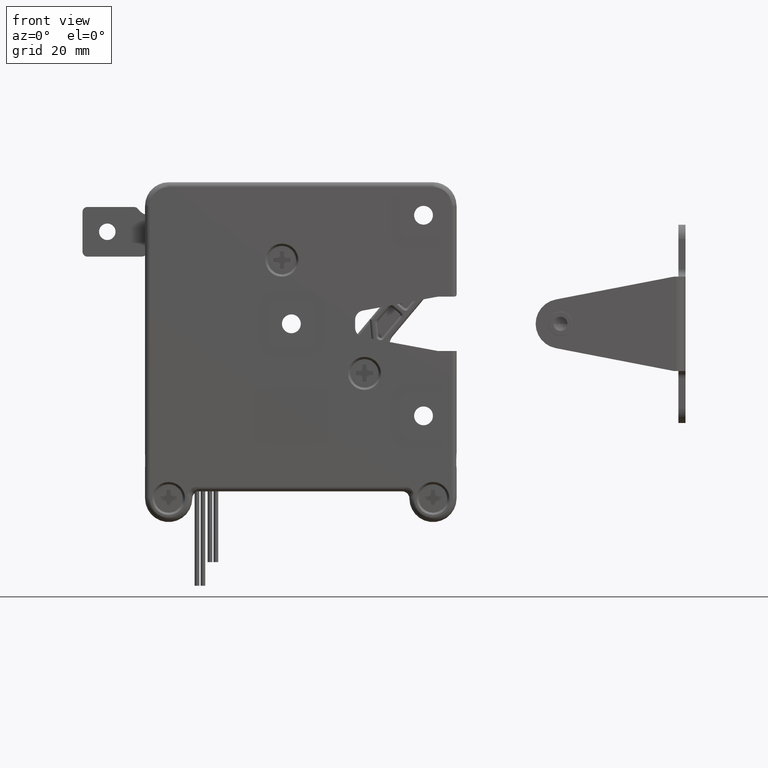
[diagram: clean part render]
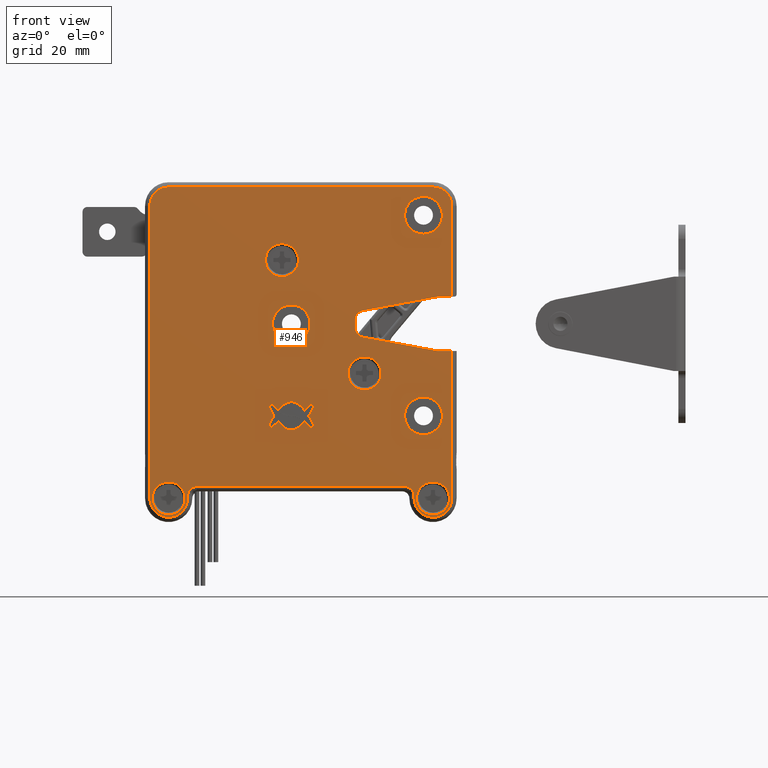
[diagram: same view with one face highlighted and labeled with its STEP entity id]
A machine part, front view. The second image highlights one B-rep face of the part: STEP entity #946.
In plain terms, the highlighted planar face has unit normal (0, -1, 0).
Its self-contained STEP definition (entity closure, byte-faithful):
#946=ADVANCED_FACE('',(#10690,#10691,#10692,#10693,#10694,#10695,#10696,#10697,#10698),#10689,.T.);
#10689=PLANE('',#32386);
#10690=FACE_OUTER_BOUND('',#32387,.T.);
#10691=FACE_BOUND('',#32388,.T.);
#10692=FACE_BOUND('',#32389,.T.);
#10693=FACE_BOUND('',#32390,.T.);
#10694=FACE_BOUND('',#32391,.T.);
#10695=FACE_BOUND('',#32392,.T.);
#10696=FACE_BOUND('',#32393,.T.);
#10697=FACE_BOUND('',#32394,.T.);
#10698=FACE_BOUND('',#32395,.T.);
#32383=CARTESIAN_POINT('',(6.90000000000E+00,-1.25000000000E+01,-4.80000007493E+01));
#32384=DIRECTION('',(0.00000000000E+00,-1.00000000000E+00,0.00000000000E+00));
#32385=DIRECTION('',(0.00000000000E+00,0.00000000000E+00,1.00000000000E+00));
#32386=AXIS2_PLACEMENT_3D('',#32383,#32384,#32385);
#32387=EDGE_LOOP('',(#47318,#47319,#47320,#47321,#47322,#47323,#47324,#47325,#47326,#47327,#47328,#47329,#47330,#47331,#47332,#47333,#47334,#47335,#47336,#47337));
#32388=EDGE_LOOP('',(#47338,#47339));
#32389=EDGE_LOOP('',(#47340,#47341));
#32390=EDGE_LOOP('',(#47342,#47343,#47344,#47345,#47346,#47347,#47348,#47349,#47350));
#32391=EDGE_LOOP('',(#47351,#47352));
#32392=EDGE_LOOP('',(#47353,#47354));
#32393=EDGE_LOOP('',(#47355,#47356));
#32394=EDGE_LOOP('',(#47357,#47358));
#32395=EDGE_LOOP('',(#47359,#47360));
#47318=ORIENTED_EDGE('',*,*,#57233,.T.);
#47319=ORIENTED_EDGE('',*,*,#57234,.T.);
#47320=ORIENTED_EDGE('',*,*,#57235,.F.);
#47321=ORIENTED_EDGE('',*,*,#57236,.F.);
#47322=ORIENTED_EDGE('',*,*,#57237,.T.);
#47323=ORIENTED_EDGE('',*,*,#57238,.F.);
#47324=ORIENTED_EDGE('',*,*,#57239,.T.);
#47325=ORIENTED_EDGE('',*,*,#57240,.F.);
#47326=ORIENTED_EDGE('',*,*,#57241,.F.);
#47327=ORIENTED_EDGE('',*,*,#57242,.T.);
#47328=ORIENTED_EDGE('',*,*,#54513,.T.);
#47329=ORIENTED_EDGE('',*,*,#54510,.T.);
#47330=ORIENTED_EDGE('',*,*,#54507,.T.);
#47331=ORIENTED_EDGE('',*,*,#54503,.T.);
#47332=ORIENTED_EDGE('',*,*,#57243,.T.);
#47333=ORIENTED_EDGE('',*,*,#57244,.T.);
#47334=ORIENTED_EDGE('',*,*,#57245,.T.);
#47335=ORIENTED_EDGE('',*,*,#57246,.T.);
#47336=ORIENTED_EDGE('',*,*,#57247,.T.);
#47337=ORIENTED_EDGE('',*,*,#57248,.T.);
#47338=ORIENTED_EDGE('',*,*,#57249,.F.);
#47339=ORIENTED_EDGE('',*,*,#57250,.F.);
#47340=ORIENTED_EDGE('',*,*,#57251,.F.);
#47341=ORIENTED_EDGE('',*,*,#57252,.F.);
#47342=ORIENTED_EDGE('',*,*,#53861,.T.);
#47343=ORIENTED_EDGE('',*,*,#57253,.T.);
#47344=ORIENTED_EDGE('',*,*,#53842,.T.);
#47345=ORIENTED_EDGE('',*,*,#53845,.T.);
#47346=ORIENTED_EDGE('',*,*,#53847,.T.);
#47347=ORIENTED_EDGE('',*,*,#57254,.T.);
#47348=ORIENTED_EDGE('',*,*,#53849,.T.);
#47349=ORIENTED_EDGE('',*,*,#53852,.T.);
#47350=ORIENTED_EDGE('',*,*,#53854,.T.);
#47351=ORIENTED_EDGE('',*,*,#57255,.F.);
#47352=ORIENTED_EDGE('',*,*,#57256,.F.);
#47353=ORIENTED_EDGE('',*,*,#57257,.T.);
#47354=ORIENTED_EDGE('',*,*,#57258,.T.);
#47355=ORIENTED_EDGE('',*,*,#57259,.T.);
#47356=ORIENTED_EDGE('',*,*,#57260,.T.);
#47357=ORIENTED_EDGE('',*,*,#57261,.T.);
#47358=ORIENTED_EDGE('',*,*,#57262,.T.);
#47359=ORIENTED_EDGE('',*,*,#57263,.T.);
#47360=ORIENTED_EDGE('',*,*,#57264,.T.);
#53842=EDGE_CURVE('',#59784,#59785,#59786,.T.);
#53845=EDGE_CURVE('',#59785,#59804,#59805,.T.);
#53847=EDGE_CURVE('',#59804,#59817,#59818,.T.);
#53849=EDGE_CURVE('',#59830,#59831,#59832,.T.);
#53852=EDGE_CURVE('',#59831,#59850,#59851,.T.);
#53854=EDGE_CURVE('',#59850,#59863,#59864,.T.);
#53861=EDGE_CURVE('',#59863,#59909,#59910,.T.);
#54503=EDGE_CURVE('',#64265,#64258,#64266,.T.);
#54507=EDGE_CURVE('',#64278,#64265,#64292,.T.);
#54510=EDGE_CURVE('',#64298,#64278,#64312,.T.);
#54513=EDGE_CURVE('',#64318,#64298,#64332,.T.);
#57233=EDGE_CURVE('',#82644,#82645,#82646,.T.);
#57234=EDGE_CURVE('',#82645,#82652,#82653,.T.);
#57235=EDGE_CURVE('',#82659,#82652,#82660,.T.);
#57236=EDGE_CURVE('',#82666,#82659,#82667,.T.);
#57237=EDGE_CURVE('',#82666,#82673,#82674,.T.);
#57238=EDGE_CURVE('',#82680,#82673,#82681,.T.);
#57239=EDGE_CURVE('',#82680,#82687,#82688,.T.);
#57240=EDGE_CURVE('',#82694,#82687,#82695,.T.);
#57241=EDGE_CURVE('',#82701,#82694,#82702,.T.);
#57242=EDGE_CURVE('',#82701,#64318,#82708,.T.);
#57243=EDGE_CURVE('',#64258,#82714,#82715,.T.);
#57244=EDGE_CURVE('',#82714,#82721,#82722,.T.);
#57245=EDGE_CURVE('',#82721,#82728,#82729,.T.);
#57246=EDGE_CURVE('',#82728,#82735,#82736,.T.);
#57247=EDGE_CURVE('',#82735,#82742,#82743,.T.);
#57248=EDGE_CURVE('',#82742,#82644,#82749,.T.);
#57249=EDGE_CURVE('',#82755,#82756,#82757,.T.);
#57250=EDGE_CURVE('',#82756,#82755,#82763,.T.);
#57251=EDGE_CURVE('',#82769,#82770,#82771,.T.);
#57252=EDGE_CURVE('',#82770,#82769,#82777,.T.);
#57253=EDGE_CURVE('',#59909,#59784,#82783,.T.);
#57254=EDGE_CURVE('',#59817,#59830,#82789,.T.);
#57255=EDGE_CURVE('',#82795,#82796,#82797,.T.);
#57256=EDGE_CURVE('',#82796,#82795,#82803,.T.);
#57257=EDGE_CURVE('',#82809,#82810,#82811,.T.);
#57258=EDGE_CURVE('',#82810,#82809,#82817,.T.);
#57259=EDGE_CURVE('',#82823,#82824,#82825,.T.);
#57260=EDGE_CURVE('',#82824,#82823,#82831,.T.);
#57261=EDGE_CURVE('',#82837,#82838,#82839,.T.);
#57262=EDGE_CURVE('',#82838,#82837,#82845,.T.);
#57263=EDGE_CURVE('',#82851,#82852,#82853,.T.);
#57264=EDGE_CURVE('',#82852,#82851,#82859,.T.);
#59784=VERTEX_POINT('',#98678);
#59785=VERTEX_POINT('',#98679);
#59786=(BOUNDED_CURVE() B_SPLINE_CURVE(3,(#98680,#98681,#98682,#98683,#98684,#98685,#98686,#98687,#98688),.UNSPECIFIED.,.F.,.F.) B_SPLINE_CURVE_WITH_KNOTS((4,1,1,1,1,1,4),(0.00000000000E+00,8.39288835995E-04,1.39880397786E-03,1.67856191924E-03,2.04764154787E-03,2.23088923862E-03,2.50928476180E-03),.UNSPECIFIED.) CURVE() GEOMETRIC_REPRESENTATION_ITEM() RATIONAL_B_SPLINE_CURVE((1.00000000000E+00,1.00000000000E+00,1.00000000000E+00,1.00000000000E+00,1.00000000000E+00,1.00000000000E+00,1.00000000000E+00,1.00000000000E+00,1.00000000000E+00)) REPRESENTATION_ITEM('') );
#59804=VERTEX_POINT('',#98695);
#59805=(BOUNDED_CURVE() B_SPLINE_CURVE(3,(#98696,#98697,#98698,#98699,#98700,#98701,#98702,#98703,#98704,#98705,#98706,#98707,#98708,#98709,#98710,#98711,#98712,#98713,#98714,#98715,#98716,#98717,#98718,#98719,#98720,#98721,#98722,#98723,#98724,#98725,#98726,#98727,#98728,#98729,#98730,#98731,#98732,#98733,#98734,#98735,#98736,#98737,#98738,#98739,#98740,#98741,#98742,#98743,#98744,#98745,#98746,#98747,#98748,#98749,#98750,#98751,#98752,#98753,#98754,#98755,#98756),.UNSPECIFIED.,.F.,.F.) B_SPLINE_CURVE_WITH_KNOTS((4,1,1,1,1,1,1,1,1,1,1,1,1,1,1,1,1,1,1,1,1,1,1,1,1,1,1,1,1,1,1,1,1,1,1,1,1,1,1,1,1,1,1,1,1,1,1,1,1,1,1,1,1,1,1,1,1,1,4),(0.00000000000E+00,4.58069698383E-05,9.16431224876E-05,1.37523301518E-04,1.83463018447E-04,2.29453337392E-04,2.75407286771E-04,3.21274355074E-04,3.67080560354E-04,4.12887807087E-04,4.58681416539E-04,5.04466375188E-04,5.50244279369E-04,5.96017044535E-04,6.41790498710E-04,6.87564022794E-04,7.33337395224E-04,7.79110581318E-04,8.24883897840E-04,8.70657510927E-04,9.16431429005E-04,9.62205547103E-04,1.00797966622E-03,1.05375367803E-03,1.09952759609E-03,1.14530143704E-03,1.19107521665E-03,1.23684894973E-03,1.28262265021E-03,1.32839634143E-03,1.37417007116E-03,1.41994388717E-03,1.46571783264E-03,1.51149194619E-03,1.55726626197E-03,1.60304080961E-03,1.64881561427E-03,1.69459068797E-03,1.74036602307E-03,1.78614161364E-03,1.83191745850E-03,1.87769356123E-03,1.92346993022E-03,1.96924657868E-03,2.01502352469E-03,2.06080079124E-03,2.10657840623E-03,2.15235640254E-03,2.19813481802E-03,2.24391369555E-03,2.28969308308E-03,2.33547303364E-03,2.38125360537E-03,2.42703486156E-03,2.47281687070E-03,2.51859970648E-03,2.56438342302E-03,2.61016789639E-03,2.65595293138E-03),.UNSPECIFIED.) CURVE() GEOMETRIC_REPRESENTATION_ITEM() RATIONAL_B_SPLINE_CURVE((1.00000000000E+00,1.00000000000E+00,1.00000000000E+00,1.00000000000E+00,1.00000000000E+00,1.00000000000E+00,1.00000000000E+00,1.00000000000E+00,1.00000000000E+00,1.00000000000E+00,1.00000000000E+00,1.00000000000E+00,1.00000000000E+00,1.00000000000E+00,1.00000000000E+00,1.00000000000E+00,1.00000000000E+00,1.00000000000E+00,1.00000000000E+00,1.00000000000E+00,1.00000000000E+00,1.00000000000E+00,1.00000000000E+00,1.00000000000E+00,1.00000000000E+00,1.00000000000E+00,1.00000000000E+00,1.00000000000E+00,1.00000000000E+00,1.00000000000E+00,1.00000000000E+00,1.00000000000E+00,1.00000000000E+00,1.00000000000E+00,1.00000000000E+00,1.00000000000E+00,1.00000000000E+00,1.00000000000E+00,1.00000000000E+00,1.00000000000E+00,1.00000000000E+00,1.00000000000E+00,1.00000000000E+00,1.00000000000E+00,1.00000000000E+00,1.00000000000E+00,1.00000000000E+00,1.00000000000E+00,1.00000000000E+00,1.00000000000E+00,1.00000000000E+00,1.00000000000E+00,1.00000000000E+00,1.00000000000E+00,1.00000000000E+00,1.00000000000E+00,1.00000000000E+00,1.00000000000E+00,1.00000000000E+00,1.00000000000E+00,1.00000000000E+00)) REPRESENTATION_ITEM('') );
#59817=VERTEX_POINT('',#98760);
#59818=(BOUNDED_CURVE() B_SPLINE_CURVE(3,(#98761,#98762,#98763,#98764,#98765,#98766,#98767,#98768,#98769,#98770,#98771,#98772,#98773,#98774,#98775),.UNSPECIFIED.,.F.,.F.) B_SPLINE_CURVE_WITH_KNOTS((4,1,1,1,1,1,1,1,1,1,1,1,4),(0.00000000000E+00,5.75868028548E-04,1.34364812604E-03,1.72755868051E-03,1.98358597058E-03,2.11159407115E-03,2.36556053443E-03,2.86032497175E-03,3.04853792767E-03,3.42514091372E-03,3.61709699042E-03,4.00098587943E-03,5.15267525246E-03),.UNSPECIFIED.) CURVE() GEOMETRIC_REPRESENTATION_ITEM() RATIONAL_B_SPLINE_CURVE((1.00000000000E+00,1.00000000000E+00,1.00000000000E+00,1.00000000000E+00,1.00000000000E+00,1.00000000000E+00,1.00000000000E+00,1.00000000000E+00,1.00000000000E+00,1.00000000000E+00,1.00000000000E+00,1.00000000000E+00,1.00000000000E+00,1.00000000000E+00,1.00000000000E+00)) REPRESENTATION_ITEM('') );
#59830=VERTEX_POINT('',#98779);
#59831=VERTEX_POINT('',#98780);
#59832=(BOUNDED_CURVE() B_SPLINE_CURVE(3,(#98781,#98782,#98783,#98784,#98785,#98786,#98787,#98788,#98789,#98790,#98791,#98792,#98793,#98794,#98795,#98796,#98797,#98798,#98799,#98800,#98801,#98802,#98803,#98804,#98805,#98806,#98807,#98808,#98809,#98810,#98811,#98812,#98813,#98814,#98815,#98816,#98817,#98818,#98819,#98820,#98821,#98822,#98823,#98824,#98825,#98826,#98827,#98828),.UNSPECIFIED.,.F.,.F.) B_SPLINE_CURVE_WITH_KNOTS((4,1,1,1,1,1,1,1,1,1,1,1,1,1,1,1,1,1,1,1,1,1,1,1,1,1,1,1,1,1,1,1,1,1,1,1,1,1,1,1,1,1,1,1,1,4),(0.00000000000E+00,2.87046849842E-04,5.82901126510E-04,8.72573682812E-04,1.16267494032E-03,1.45370776246E-03,1.74429304979E-03,2.03320976174E-03,2.28175314155E-03,2.42246140955E-03,2.47872602125E-03,2.51714205339E-03,2.55487302761E-03,2.59193134131E-03,2.62831361461E-03,2.66401645609E-03,2.69903646293E-03,2.73337022100E-03,2.76701430493E-03,2.79996527827E-03,2.83221969357E-03,2.86377409247E-03,2.89462500583E-03,2.92476895379E-03,2.95420244594E-03,2.98292198136E-03,3.01092404875E-03,3.03820512651E-03,3.06476168288E-03,3.09059017602E-03,3.11568705409E-03,3.14004875540E-03,3.16367170849E-03,3.18655233222E-03,3.20868703591E-03,3.23007221943E-03,3.25070427333E-03,3.27057957895E-03,3.28969450854E-03,3.30804542541E-03,3.32562868407E-03,3.34244063037E-03,3.35847760171E-03,3.37373592720E-03,3.38821192793E-03,3.40190191723E-03),.UNSPECIFIED.) CURVE() GEOMETRIC_REPRESENTATION_ITEM() RATIONAL_B_SPLINE_CURVE((1.00000000000E+00,1.00000000000E+00,1.00000000000E+00,1.00000000000E+00,1.00000000000E+00,1.00000000000E+00,1.00000000000E+00,1.00000000000E+00,1.00000000000E+00,1.00000000000E+00,1.00000000000E+00,1.00000000000E+00,1.00000000000E+00,1.00000000000E+00,1.00000000000E+00,1.00000000000E+00,1.00000000000E+00,1.00000000000E+00,1.00000000000E+00,1.00000000000E+00,1.00000000000E+00,1.00000000000E+00,1.00000000000E+00,1.00000000000E+00,1.00000000000E+00,1.00000000000E+00,1.00000000000E+00,1.00000000000E+00,1.00000000000E+00,1.00000000000E+00,1.00000000000E+00,1.00000000000E+00,1.00000000000E+00,1.00000000000E+00,1.00000000000E+00,1.00000000000E+00,1.00000000000E+00,1.00000000000E+00,1.00000000000E+00,1.00000000000E+00,1.00000000000E+00,1.00000000000E+00,1.00000000000E+00,1.00000000000E+00,1.00000000000E+00,1.00000000000E+00,1.00000000000E+00,1.00000000000E+00)) REPRESENTATION_ITEM('') );
#59850=VERTEX_POINT('',#98835);
#59851=(BOUNDED_CURVE() B_SPLINE_CURVE(3,(#98836,#98837,#98838,#98839,#98840,#98841,#98842,#98843,#98844,#98845,#98846,#98847,#98848,#98849,#98850),.UNSPECIFIED.,.F.,.F.) B_SPLINE_CURVE_WITH_KNOTS((4,1,1,1,1,1,1,1,1,1,1,1,4),(0.00000000000E+00,1.15994294601E-03,1.54658297326E-03,1.73991470202E-03,2.11921680057E-03,2.30877856605E-03,2.80708857990E-03,3.06287507065E-03,3.19180053916E-03,3.44966264685E-03,3.83632449343E-03,4.60960688116E-03,5.18960186363E-03),.UNSPECIFIED.) CURVE() GEOMETRIC_REPRESENTATION_ITEM() RATIONAL_B_SPLINE_CURVE((1.00000000000E+00,1.00000000000E+00,1.00000000000E+00,1.00000000000E+00,1.00000000000E+00,1.00000000000E+00,1.00000000000E+00,1.00000000000E+00,1.00000000000E+00,1.00000000000E+00,1.00000000000E+00,1.00000000000E+00,1.00000000000E+00,1.00000000000E+00,1.00000000000E+00)) REPRESENTATION_ITEM('') );
#59863=VERTEX_POINT('',#98854);
#59864=(BOUNDED_CURVE() B_SPLINE_CURVE(3,(#98855,#98856,#98857,#98858,#98859,#98860,#98861,#98862,#98863,#98864,#98865,#98866,#98867,#98868,#98869),.UNSPECIFIED.,.F.,.F.) B_SPLINE_CURVE_WITH_KNOTS((4,1,1,1,1,1,1,1,1,1,1,1,4),(0.00000000000E+00,5.75868576816E-04,1.34364940520E-03,1.72756032518E-03,1.98358785896E-03,2.11159608026E-03,2.36556276420E-03,2.86032752452E-03,3.04854064257E-03,3.42514417583E-03,3.61710043556E-03,4.00098969144E-03,5.15268016065E-03),.UNSPECIFIED.) CURVE() GEOMETRIC_REPRESENTATION_ITEM() RATIONAL_B_SPLINE_CURVE((1.00000000000E+00,1.00000000000E+00,1.00000000000E+00,1.00000000000E+00,1.00000000000E+00,1.00000000000E+00,1.00000000000E+00,1.00000000000E+00,1.00000000000E+00,1.00000000000E+00,1.00000000000E+00,1.00000000000E+00,1.00000000000E+00,1.00000000000E+00,1.00000000000E+00)) REPRESENTATION_ITEM('') );
#59909=VERTEX_POINT('',#98923);
#59910=(BOUNDED_CURVE() B_SPLINE_CURVE(3,(#98924,#98925,#98926,#98927,#98928,#98929,#98930,#98931,#98932,#98933,#98934,#98935,#98936,#98937,#98938,#98939,#98940,#98941,#98942,#98943,#98944,#98945,#98946,#98947,#98948,#98949,#98950,#98951,#98952,#98953,#98954,#98955,#98956,#98957,#98958,#98959,#98960,#98961,#98962,#98963,#98964,#98965,#98966,#98967,#98968,#98969,#98970,#98971),.UNSPECIFIED.,.F.,.F.) B_SPLINE_CURVE_WITH_KNOTS((4,1,1,1,1,1,1,1,1,1,1,1,1,1,1,1,1,1,1,1,1,1,1,1,1,1,1,1,1,1,1,1,1,1,1,1,1,1,1,1,1,1,1,1,1,4),(0.00000000000E+00,1.37407725709E-05,2.82704723006E-05,4.35853988405E-05,5.96818596285E-05,7.65561701675E-05,9.42046542603E-05,1.12623644210E-04,1.31809480998E-04,1.51758514443E-04,1.72467103342E-04,1.93931615610E-04,2.16148428405E-04,2.39113928246E-04,2.62824511129E-04,2.87276582641E-04,3.12466558066E-04,3.38390862493E-04,3.65045930921E-04,3.92428208365E-04,4.20534149955E-04,4.49360221041E-04,4.78902897297E-04,5.09158664818E-04,5.40124020228E-04,5.71795470778E-04,6.04169534452E-04,6.37242740066E-04,6.71011627375E-04,7.05472747176E-04,7.40622661410E-04,7.76457943270E-04,8.12975177308E-04,8.50170959536E-04,8.88041897537E-04,9.26600434690E-04,9.83073761057E-04,1.12430398911E-03,1.37376934541E-03,1.66375779951E-03,1.95542101862E-03,2.24753343266E-03,2.53871082642E-03,2.82945792869E-03,3.12640968255E-03,3.41452133826E-03),.UNSPECIFIED.) CURVE() GEOMETRIC_REPRESENTATION_ITEM() RATIONAL_B_SPLINE_CURVE((1.00000000000E+00,1.00000000000E+00,1.00000000000E+00,1.00000000000E+00,1.00000000000E+00,1.00000000000E+00,1.00000000000E+00,1.00000000000E+00,1.00000000000E+00,1.00000000000E+00,1.00000000000E+00,1.00000000000E+00,1.00000000000E+00,1.00000000000E+00,1.00000000000E+00,1.00000000000E+00,1.00000000000E+00,1.00000000000E+00,1.00000000000E+00,1.00000000000E+00,1.00000000000E+00,1.00000000000E+00,1.00000000000E+00,1.00000000000E+00,1.00000000000E+00,1.00000000000E+00,1.00000000000E+00,1.00000000000E+00,1.00000000000E+00,1.00000000000E+00,1.00000000000E+00,1.00000000000E+00,1.00000000000E+00,1.00000000000E+00,1.00000000000E+00,1.00000000000E+00,1.00000000000E+00,1.00000000000E+00,1.00000000000E+00,1.00000000000E+00,1.00000000000E+00,1.00000000000E+00,1.00000000000E+00,1.00000000000E+00,1.00000000000E+00,1.00000000000E+00,1.00000000000E+00,1.00000000000E+00)) REPRESENTATION_ITEM('') );
#64258=VERTEX_POINT('',#102041);
#64265=VERTEX_POINT('',#102046);
#64266=LINE('',#102047,#102048);
#64278=VERTEX_POINT('',#102054);
#64292=CIRCLE('',#102067,4.00000000000E+00);
#64298=VERTEX_POINT('',#102068);
#64312=LINE('',#102077,#102078);
#64318=VERTEX_POINT('',#102080);
#64332=CIRCLE('',#102093,4.00000000000E+00);
#82644=VERTEX_POINT('',#113404);
#82645=VERTEX_POINT('',#113405);
#82646=CIRCLE('',#113409,4.00000000000E+00);
#82652=VERTEX_POINT('',#113410);
#82653=LINE('',#113411,#113412);
#82659=VERTEX_POINT('',#113414);
#82660=LINE('',#113415,#113416);
#82666=VERTEX_POINT('',#113418);
#82667=LINE('',#113419,#113420);
#82673=VERTEX_POINT('',#113422);
#82674=CIRCLE('',#113426,2.00000000000E+00);
#82680=VERTEX_POINT('',#113427);
#82681=LINE('',#113428,#113429);
#82687=VERTEX_POINT('',#113431);
#82688=CIRCLE('',#113435,2.00000000000E+00);
#82694=VERTEX_POINT('',#113436);
#82695=LINE('',#113437,#113438);
#82701=VERTEX_POINT('',#113440);
#82702=LINE('',#113441,#113442);
#82708=LINE('',#113444,#113445);
#82714=VERTEX_POINT('',#113447);
#82715=CIRCLE('',#113451,4.00000000000E+00);
#82721=VERTEX_POINT('',#113452);
#82722=LINE('',#113453,#113454);
#82728=VERTEX_POINT('',#113456);
#82729=CIRCLE('',#113460,2.00000000000E+00);
#82735=VERTEX_POINT('',#113461);
#82736=LINE('',#113462,#113463);
#82742=VERTEX_POINT('',#113465);
#82743=CIRCLE('',#113469,2.00000000000E+00);
#82749=LINE('',#113470,#113471);
#82755=VERTEX_POINT('',#113473);
#82756=VERTEX_POINT('',#113474);
#82757=CIRCLE('',#113478,4.00000000000E+00);
#82763=CIRCLE('',#113482,4.00000000000E+00);
#82769=VERTEX_POINT('',#113483);
#82770=VERTEX_POINT('',#113484);
#82771=CIRCLE('',#113488,4.00000000000E+00);
#82777=CIRCLE('',#113492,4.00000000000E+00);
#82783=(BOUNDED_CURVE() B_SPLINE_CURVE(3,(#113493,#113494,#113495,#113496,#113497,#113498,#113499,#113500,#113501,#113502,#113503,#113504,#113505,#113506,#113507,#113508,#113509,#113510,#113511,#113512,#113513,#113514,#113515,#113516,#113517,#113518,#113519,#113520,#113521,#113522,#113523,#113524,#113525,#113526,#113527,#113528,#113529,#113530,#113531,#113532,#113533,#113534,#113535,#113536,#113537,#113538,#113539,#113540),.UNSPECIFIED.,.F.,.F.) B_SPLINE_CURVE_WITH_KNOTS((4,1,1,1,1,1,1,1,1,1,1,1,1,1,1,1,1,1,1,1,1,1,1,1,1,1,1,1,1,1,1,1,1,1,1,1,1,1,1,1,1,1,1,1,1,4),(0.00000000000E+00,2.87046849836E-04,5.82901126500E-04,8.72573682796E-04,1.16267494029E-03,1.45370776243E-03,1.74429304976E-03,2.03320976170E-03,2.28175314150E-03,2.42246140950E-03,2.47872602119E-03,2.51714205333E-03,2.55487302755E-03,2.59193134124E-03,2.62831361453E-03,2.66401645601E-03,2.69903646285E-03,2.73337022090E-03,2.76701430483E-03,2.79996527817E-03,2.83221969346E-03,2.86377409236E-03,2.89462500571E-03,2.92476895367E-03,2.95420244581E-03,2.98292198122E-03,3.01092404860E-03,3.03820512636E-03,3.06476168272E-03,3.09059017585E-03,3.11568705392E-03,3.14004875523E-03,3.16367170831E-03,3.18655233203E-03,3.20868703572E-03,3.23007221923E-03,3.25070427313E-03,3.27057957874E-03,3.28969450833E-03,3.30804542519E-03,3.32562868385E-03,3.34244063014E-03,3.35847760148E-03,3.37373592696E-03,3.38821192769E-03,3.40190191698E-03),.UNSPECIFIED.) CURVE() GEOMETRIC_REPRESENTATION_ITEM() RATIONAL_B_SPLINE_CURVE((1.00000000000E+00,1.00000000000E+00,1.00000000000E+00,1.00000000000E+00,1.00000000000E+00,1.00000000000E+00,1.00000000000E+00,1.00000000000E+00,1.00000000000E+00,1.00000000000E+00,1.00000000000E+00,1.00000000000E+00,1.00000000000E+00,1.00000000000E+00,1.00000000000E+00,1.00000000000E+00,1.00000000000E+00,1.00000000000E+00,1.00000000000E+00,1.00000000000E+00,1.00000000000E+00,1.00000000000E+00,1.00000000000E+00,1.00000000000E+00,1.00000000000E+00,1.00000000000E+00,1.00000000000E+00,1.00000000000E+00,1.00000000000E+00,1.00000000000E+00,1.00000000000E+00,1.00000000000E+00,1.00000000000E+00,1.00000000000E+00,1.00000000000E+00,1.00000000000E+00,1.00000000000E+00,1.00000000000E+00,1.00000000000E+00,1.00000000000E+00,1.00000000000E+00,1.00000000000E+00,1.00000000000E+00,1.00000000000E+00,1.00000000000E+00,1.00000000000E+00,1.00000000000E+00,1.00000000000E+00)) REPRESENTATION_ITEM('') );
#82789=(BOUNDED_CURVE() B_SPLINE_CURVE(3,(#113541,#113542,#113543,#113544,#113545,#113546,#113547,#113548,#113549,#113550,#113551,#113552,#113553,#113554,#113555,#113556,#113557,#113558,#113559,#113560,#113561,#113562,#113563,#113564,#113565,#113566,#113567,#113568,#113569,#113570,#113571,#113572,#113573,#113574,#113575,#113576,#113577,#113578,#113579,#113580,#113581,#113582,#113583,#113584,#113585,#113586,#113587,#113588),.UNSPECIFIED.,.F.,.F.) B_SPLINE_CURVE_WITH_KNOTS((4,1,1,1,1,1,1,1,1,1,1,1,1,1,1,1,1,1,1,1,1,1,1,1,1,1,1,1,1,1,1,1,1,1,1,1,1,1,1,1,1,1,1,1,1,4),(0.00000000000E+00,1.37407774238E-05,2.82704822853E-05,4.35854142346E-05,5.96818807081E-05,7.65561972076E-05,9.42046875345E-05,1.12623683991E-04,1.31809527557E-04,1.51758568048E-04,1.72467164263E-04,1.93931684114E-04,2.16148504758E-04,2.39114012713E-04,2.62824603973E-04,2.87276684123E-04,3.12466668448E-04,3.38390982034E-04,3.65046059880E-04,3.92428346998E-04,4.20534298519E-04,4.49360379790E-04,4.78903066483E-04,5.09158844695E-04,5.40124211046E-04,5.71795672786E-04,6.04169747899E-04,6.37242965199E-04,6.71011864440E-04,7.05472996417E-04,7.40622923072E-04,7.76458217595E-04,8.12975464535E-04,8.50171259906E-04,8.88042211290E-04,9.26600762067E-04,9.83074108391E-04,1.12430438636E-03,1.37376983083E-03,1.66375838742E-03,1.95542170961E-03,2.24753422690E-03,2.53871172357E-03,2.82945892861E-03,3.12641078742E-03,3.41452254496E-03),.UNSPECIFIED.) CURVE() GEOMETRIC_REPRESENTATION_ITEM() RATIONAL_B_SPLINE_CURVE((1.00000000000E+00,1.00000000000E+00,1.00000000000E+00,1.00000000000E+00,1.00000000000E+00,1.00000000000E+00,1.00000000000E+00,1.00000000000E+00,1.00000000000E+00,1.00000000000E+00,1.00000000000E+00,1.00000000000E+00,1.00000000000E+00,1.00000000000E+00,1.00000000000E+00,1.00000000000E+00,1.00000000000E+00,1.00000000000E+00,1.00000000000E+00,1.00000000000E+00,1.00000000000E+00,1.00000000000E+00,1.00000000000E+00,1.00000000000E+00,1.00000000000E+00,1.00000000000E+00,1.00000000000E+00,1.00000000000E+00,1.00000000000E+00,1.00000000000E+00,1.00000000000E+00,1.00000000000E+00,1.00000000000E+00,1.00000000000E+00,1.00000000000E+00,1.00000000000E+00,1.00000000000E+00,1.00000000000E+00,1.00000000000E+00,1.00000000000E+00,1.00000000000E+00,1.00000000000E+00,1.00000000000E+00,1.00000000000E+00,1.00000000000E+00,1.00000000000E+00,1.00000000000E+00,1.00000000000E+00)) REPRESENTATION_ITEM('') );
#82795=VERTEX_POINT('',#113589);
#82796=VERTEX_POINT('',#113590);
#82797=CIRCLE('',#113594,4.00000000000E+00);
#82803=CIRCLE('',#113598,4.00000000000E+00);
#82809=VERTEX_POINT('',#113599);
#82810=VERTEX_POINT('',#113600);
#82811=CIRCLE('',#113604,3.50000000000E+00);
#82817=CIRCLE('',#113608,3.50000000000E+00);
#82823=VERTEX_POINT('',#113609);
#82824=VERTEX_POINT('',#113610);
#82825=CIRCLE('',#113614,3.50000000000E+00);
#82831=CIRCLE('',#113618,3.50000000000E+00);
#82837=VERTEX_POINT('',#113619);
#82838=VERTEX_POINT('',#113620);
#82839=CIRCLE('',#113624,3.50000000000E+00);
#82845=CIRCLE('',#113628,3.50000000000E+00);
#82851=VERTEX_POINT('',#113629);
#82852=VERTEX_POINT('',#113630);
#82853=CIRCLE('',#113634,3.50000000000E+00);
#82859=CIRCLE('',#113638,3.50000000000E+00);
#98678=CARTESIAN_POINT('',(-3.07052114119E+01,-1.25000000000E+01,-1.82857406770E+01));
#98679=CARTESIAN_POINT('',(-2.87973010149E+01,-1.25000000000E+01,-1.71465211139E+01));
#98680=CARTESIAN_POINT('',(-3.07052114119E+01,-1.24999999998E+01,-1.82857406770E+01));
#98681=CARTESIAN_POINT('',(-3.04892321394E+01,-1.24999999998E+01,-1.81083138607E+01));
#98682=CARTESIAN_POINT('',(-3.01602414548E+01,-1.24999999998E+01,-1.77814257862E+01));
#98683=CARTESIAN_POINT('',(-2.97410183470E+01,-1.24999999998E+01,-1.74082844733E+01));
#98684=CARTESIAN_POINT('',(-2.94572148033E+01,-1.24999999998E+01,-1.71325118965E+01));
#98685=CARTESIAN_POINT('',(-2.92461038404E+01,-1.24999999998E+01,-1.69242877298E+01));
#98686=CARTESIAN_POINT('',(-2.89463743896E+01,-1.24999999998E+01,-1.69324735121E+01));
#98687=CARTESIAN_POINT('',(-2.88395946668E+01,-1.24999999998E+01,-1.70689919530E+01));
#98688=CARTESIAN_POINT('',(-2.87973010149E+01,-1.24999999998E+01,-1.71465211139E+01));
#98695=CARTESIAN_POINT('',(-2.98198214095E+01,-1.25000000000E+01,-1.95000004920E+01));
#98696=CARTESIAN_POINT('',(-2.87973010149E+01,-1.25000000000E+01,-1.71465211139E+01));
#98697=CARTESIAN_POINT('',(-2.87902243541E+01,-1.25000000000E+01,-1.71600090865E+01));
#98698=CARTESIAN_POINT('',(-2.87770896782E+01,-1.25000000000E+01,-1.71875277287E+01));
#98699=CARTESIAN_POINT('',(-2.87603703985E+01,-1.25000000000E+01,-1.72301202555E+01));
#98700=CARTESIAN_POINT('',(-2.87467302722E+01,-1.25000000000E+01,-1.72738435987E+01));
#98701=CARTESIAN_POINT('',(-2.87362369359E+01,-1.25000000000E+01,-1.73184785788E+01));
#98702=CARTESIAN_POINT('',(-2.87289673902E+01,-1.25000000000E+01,-1.73637790115E+01));
#98703=CARTESIAN_POINT('',(-2.87252247194E+01,-1.25000000000E+01,-1.74094886234E+01));
#98704=CARTESIAN_POINT('',(-2.87253051889E+01,-1.25000000000E+01,-1.74553007527E+01));
#98705=CARTESIAN_POINT('',(-2.87296090453E+01,-1.25000000000E+01,-1.75008690240E+01));
#98706=CARTESIAN_POINT('',(-2.87380395653E+01,-1.25000000000E+01,-1.75458214569E+01));
#98707=CARTESIAN_POINT('',(-2.87500624974E+01,-1.25000000000E+01,-1.75899289678E+01));
#98708=CARTESIAN_POINT('',(-2.87652204440E+01,-1.25000000000E+01,-1.76330367027E+01));
#98709=CARTESIAN_POINT('',(-2.87829947043E+01,-1.25000000000E+01,-1.76751228217E+01));
#98710=CARTESIAN_POINT('',(-2.88031687376E+01,-1.25000000000E+01,-1.77160875413E+01));
#98711=CARTESIAN_POINT('',(-2.88238212817E+01,-1.25000000000E+01,-1.77567965393E+01));
#98712=CARTESIAN_POINT('',(-2.88442109564E+01,-1.25000000000E+01,-1.77976414676E+01));
#98713=CARTESIAN_POINT('',(-2.88646563879E+01,-1.25000000000E+01,-1.78384572906E+01));
#98714=CARTESIAN_POINT('',(-2.88851827034E+01,-1.25000000000E+01,-1.78792327948E+01));
#98715=CARTESIAN_POINT('',(-2.89058708591E+01,-1.25000000000E+01,-1.79199264794E+01));
#98716=CARTESIAN_POINT('',(-2.89266967727E+01,-1.25000000000E+01,-1.79605500856E+01));
#98717=CARTESIAN_POINT('',(-2.89476532391E+01,-1.25000000000E+01,-1.80011067895E+01));
#98718=CARTESIAN_POINT('',(-2.89687288732E+01,-1.25000000000E+01,-1.80416018680E+01));
#98719=CARTESIAN_POINT('',(-2.89899121413E+01,-1.25000000000E+01,-1.80820407724E+01));
#98720=CARTESIAN_POINT('',(-2.90111984468E+01,-1.25000000000E+01,-1.81224254587E+01));
#98721=CARTESIAN_POINT('',(-2.90325884737E+01,-1.25000000000E+01,-1.81627552003E+01));
#98722=CARTESIAN_POINT('',(-2.90540817296E+01,-1.25000000000E+01,-1.82030299340E+01));
#98723=CARTESIAN_POINT('',(-2.90756780440E+01,-1.25000000000E+01,-1.82432494294E+01));
#98724=CARTESIAN_POINT('',(-2.90973771566E+01,-1.25000000000E+01,-1.82834135034E+01));
#98725=CARTESIAN_POINT('',(-2.91191788472E+01,-1.25000000000E+01,-1.83235219555E+01));
#98726=CARTESIAN_POINT('',(-2.91410828361E+01,-1.25000000000E+01,-1.83635746306E+01));
#98727=CARTESIAN_POINT('',(-2.91630884431E+01,-1.25000000000E+01,-1.84035716082E+01));
#98728=CARTESIAN_POINT('',(-2.91851950304E+01,-1.25000000000E+01,-1.84435129582E+01));
#98729=CARTESIAN_POINT('',(-2.92074019505E+01,-1.25000000000E+01,-1.84833987569E+01));
#98730=CARTESIAN_POINT('',(-2.92297085600E+01,-1.25000000000E+01,-1.85232290787E+01));
#98731=CARTESIAN_POINT('',(-2.92521142104E+01,-1.25000000000E+01,-1.85630040008E+01));
#98732=CARTESIAN_POINT('',(-2.92746182684E+01,-1.25000000000E+01,-1.86027235916E+01));
#98733=CARTESIAN_POINT('',(-2.92972200441E+01,-1.25000000000E+01,-1.86423879486E+01));
#98734=CARTESIAN_POINT('',(-2.93199190573E+01,-1.25000000000E+01,-1.86819970410E+01));
#98735=CARTESIAN_POINT('',(-2.93427158125E+01,-1.25000000000E+01,-1.87215502617E+01));
#98736=CARTESIAN_POINT('',(-2.93656106939E+01,-1.25000000000E+01,-1.87610470611E+01));
#98737=CARTESIAN_POINT('',(-2.93886041166E+01,-1.25000000000E+01,-1.88004868714E+01));
#98738=CARTESIAN_POINT('',(-2.94116964869E+01,-1.25000000000E+01,-1.88398691291E+01));
#98739=CARTESIAN_POINT('',(-2.94348882136E+01,-1.25000000000E+01,-1.88791932699E+01));
#98740=CARTESIAN_POINT('',(-2.94581797048E+01,-1.25000000000E+01,-1.89184587294E+01));
#98741=CARTESIAN_POINT('',(-2.94815713690E+01,-1.25000000000E+01,-1.89576649434E+01));
#98742=CARTESIAN_POINT('',(-2.95050636143E+01,-1.25000000000E+01,-1.89968113478E+01));
#98743=CARTESIAN_POINT('',(-2.95286568490E+01,-1.25000000000E+01,-1.90358973781E+01));
#98744=CARTESIAN_POINT('',(-2.95523514815E+01,-1.25000000000E+01,-1.90749224701E+01));
#98745=CARTESIAN_POINT('',(-2.95761479200E+01,-1.25000000000E+01,-1.91138860597E+01));
#98746=CARTESIAN_POINT('',(-2.96000465727E+01,-1.25000000000E+01,-1.91527875824E+01));
#98747=CARTESIAN_POINT('',(-2.96240478481E+01,-1.25000000000E+01,-1.91916264742E+01));
#98748=CARTESIAN_POINT('',(-2.96481521543E+01,-1.25000000000E+01,-1.92304021705E+01));
#98749=CARTESIAN_POINT('',(-2.96723598995E+01,-1.25000000000E+01,-1.92691141074E+01));
#98750=CARTESIAN_POINT('',(-2.96966714926E+01,-1.25000000000E+01,-1.93077617201E+01));
#98751=CARTESIAN_POINT('',(-2.97210873394E+01,-1.25000000000E+01,-1.93463444461E+01));
#98752=CARTESIAN_POINT('',(-2.97456078533E+01,-1.25000000000E+01,-1.93848617077E+01));
#98753=CARTESIAN_POINT('',(-2.97702333654E+01,-1.25000000000E+01,-1.94233128994E+01));
#98754=CARTESIAN_POINT('',(-2.97949647552E+01,-1.25000000000E+01,-1.94616969454E+01));
#98755=CARTESIAN_POINT('',(-2.98115240017E+01,-1.25000000000E+01,-1.94872402855E+01));
#98756=CARTESIAN_POINT('',(-2.98198214095E+01,-1.25000000000E+01,-1.95000004920E+01));
#98760=CARTESIAN_POINT('',(-3.07052076182E+01,-1.25000000000E+01,-2.07142634541E+01));
#98761=CARTESIAN_POINT('',(-2.98198214094E+01,-1.25000000022E+01,-1.95000004919E+01));
#98762=CARTESIAN_POINT('',(-2.97156821070E+01,-1.25000000022E+01,-1.96602179384E+01));
#98763=CARTESIAN_POINT('',(-2.94789516824E+01,-1.25000000022E+01,-2.00381580784E+01));
#98764=CARTESIAN_POINT('',(-2.91940403134E+01,-1.25000000022E+01,-2.05357069074E+01));
#98765=CARTESIAN_POINT('',(-2.89723256713E+01,-1.25000000022E+01,-2.09470739269E+01));
#98766=CARTESIAN_POINT('',(-2.88593826916E+01,-1.25000000022E+01,-2.11753052783E+01));
#98767=CARTESIAN_POINT('',(-2.87598258995E+01,-1.25000000022E+01,-2.13627032159E+01));
#98768=CARTESIAN_POINT('',(-2.86851724947E+01,-1.25000000022E+01,-2.16462823513E+01));
#98769=CARTESIAN_POINT('',(-2.88204297412E+01,-1.25000000022E+01,-2.20024122521E+01));
#98770=CARTESIAN_POINT('',(-2.91855647487E+01,-1.25000000022E+01,-2.21077355418E+01));
#98771=CARTESIAN_POINT('',(-2.94051750941E+01,-1.25000000022E+01,-2.19242650491E+01));
#98772=CARTESIAN_POINT('',(-2.96209945972E+01,-1.25000000022E+01,-2.17022453112E+01));
#98773=CARTESIAN_POINT('',(-3.00579631928E+01,-1.25000000022E+01,-2.13239739625E+01));
#98774=CARTESIAN_POINT('',(-3.04086177688E+01,-1.25000000022E+01,-2.09572985103E+01));
#98775=CARTESIAN_POINT('',(-3.07052076182E+01,-1.25000000022E+01,-2.07142634541E+01));
#98779=CARTESIAN_POINT('',(-3.35000000000E+01,-1.25000000000E+01,-2.24999991356E+01));
#98780=CARTESIAN_POINT('',(-3.62947885883E+01,-1.25000000000E+01,-2.07142603067E+01));
#98781=CARTESIAN_POINT('',(-3.35000000000E+01,-1.25000000000E+01,-2.24999991356E+01));
#98782=CARTESIAN_POINT('',(-3.35961572362E+01,-1.25000000000E+01,-2.24990125846E+01));
#98783=CARTESIAN_POINT('',(-3.37915493547E+01,-1.25000000000E+01,-2.24841778830E+01));
#98784=CARTESIAN_POINT('',(-3.40781505460E+01,-1.25000000000E+01,-2.24221172441E+01));
#98785=CARTESIAN_POINT('',(-3.43547712398E+01,-1.25000000000E+01,-2.23224517551E+01));
#98786=CARTESIAN_POINT('',(-3.46180121815E+01,-1.25000000000E+01,-2.21957967979E+01));
#98787=CARTESIAN_POINT('',(-3.48696545692E+01,-1.25000000000E+01,-2.20469959087E+01));
#98788=CARTESIAN_POINT('',(-3.51090595560E+01,-1.25000000000E+01,-2.18800503094E+01));
#98789=CARTESIAN_POINT('',(-3.53262848516E+01,-1.25000000000E+01,-2.17072926340E+01));
#98790=CARTESIAN_POINT('',(-3.54980064523E+01,-1.25000000000E+01,-2.15585313439E+01));
#98791=CARTESIAN_POINT('',(-3.56098460214E+01,-1.25000000000E+01,-2.14596593994E+01));
#98792=CARTESIAN_POINT('',(-3.56666105614E+01,-1.25000000000E+01,-2.14048884239E+01));
#98793=CARTESIAN_POINT('',(-3.56972707039E+01,-1.25000000000E+01,-2.13728267763E+01));
#98794=CARTESIAN_POINT('',(-3.57236411031E+01,-1.25000000000E+01,-2.13455721288E+01));
#98795=CARTESIAN_POINT('',(-3.57494210007E+01,-1.25000000000E+01,-2.13186934370E+01));
#98796=CARTESIAN_POINT('',(-3.57746867864E+01,-1.25000000000E+01,-2.12922635602E+01));
#98797=CARTESIAN_POINT('',(-3.57994193301E+01,-1.25000000000E+01,-2.12662686065E+01));
#98798=CARTESIAN_POINT('',(-3.58236234478E+01,-1.25000000000E+01,-2.12407182915E+01));
#98799=CARTESIAN_POINT('',(-3.58472977162E+01,-1.25000000000E+01,-2.12156161795E+01));
#98800=CARTESIAN_POINT('',(-3.58704423368E+01,-1.25000000000E+01,-2.11909674368E+01));
#98801=CARTESIAN_POINT('',(-3.58930570881E+01,-1.25000000000E+01,-2.11667768126E+01));
#98802=CARTESIAN_POINT('',(-3.59151418587E+01,-1.25000000000E+01,-2.11430491648E+01));
#98803=CARTESIAN_POINT('',(-3.59366965088E+01,-1.25000000000E+01,-2.11197893228E+01));
#98804=CARTESIAN_POINT('',(-3.59577209057E+01,-1.25000000000E+01,-2.10970021238E+01));
#98805=CARTESIAN_POINT('',(-3.59782149150E+01,-1.25000000000E+01,-2.10746924025E+01));
#98806=CARTESIAN_POINT('',(-3.59981784029E+01,-1.25000000000E+01,-2.10528649947E+01));
#98807=CARTESIAN_POINT('',(-3.60176112352E+01,-1.25000000000E+01,-2.10315247357E+01));
#98808=CARTESIAN_POINT('',(-3.60365132780E+01,-1.25000000000E+01,-2.10106764611E+01));
#98809=CARTESIAN_POINT('',(-3.60548843973E+01,-1.25000000000E+01,-2.09903250062E+01));
#98810=CARTESIAN_POINT('',(-3.60727244592E+01,-1.25000000000E+01,-2.09704752067E+01));
#98811=CARTESIAN_POINT('',(-3.60900333298E+01,-1.25000000000E+01,-2.09511318980E+01));
#98812=CARTESIAN_POINT('',(-3.61068108753E+01,-1.25000000000E+01,-2.09322999157E+01));
#98813=CARTESIAN_POINT('',(-3.61230569618E+01,-1.25000000000E+01,-2.09139840955E+01));
#98814=CARTESIAN_POINT('',(-3.61387714557E+01,-1.25000000000E+01,-2.08961892731E+01));
#98815=CARTESIAN_POINT('',(-3.61539542232E+01,-1.25000000000E+01,-2.08789202840E+01));
#98816=CARTESIAN_POINT('',(-3.61686051308E+01,-1.25000000000E+01,-2.08621819641E+01));
#98817=CARTESIAN_POINT('',(-3.61827240449E+01,-1.25000000000E+01,-2.08459791493E+01));
#98818=CARTESIAN_POINT('',(-3.61963108323E+01,-1.25000000000E+01,-2.08303166754E+01));
#98819=CARTESIAN_POINT('',(-3.62093653595E+01,-1.25000000000E+01,-2.08151993784E+01));
#98820=CARTESIAN_POINT('',(-3.62218874936E+01,-1.25000000000E+01,-2.08006320947E+01));
#98821=CARTESIAN_POINT('',(-3.62338771014E+01,-1.25000000000E+01,-2.07866196601E+01));
#98822=CARTESIAN_POINT('',(-3.62453340519E+01,-1.25000000000E+01,-2.07731669126E+01));
#98823=CARTESIAN_POINT('',(-3.62562582064E+01,-1.25000000000E+01,-2.07602786835E+01));
#98824=CARTESIAN_POINT('',(-3.62666494560E+01,-1.25000000000E+01,-2.07479598290E+01));
#98825=CARTESIAN_POINT('',(-3.62765075894E+01,-1.25000000000E+01,-2.07362151198E+01));
#98826=CARTESIAN_POINT('',(-3.62858327518E+01,-1.25000000000E+01,-2.07250496242E+01));
#98827=CARTESIAN_POINT('',(-3.62918622832E+01,-1.25000000000E+01,-2.07177916207E+01));
#98828=CARTESIAN_POINT('',(-3.62947885883E+01,-1.25000000000E+01,-2.07142603067E+01));
#98835=CARTESIAN_POINT('',(-3.71801785905E+01,-1.25000000000E+01,-1.95000004920E+01));
#98836=CARTESIAN_POINT('',(-3.62947885881E+01,-1.25000000024E+01,-2.07142603069E+01));
#98837=CARTESIAN_POINT('',(-3.65913789519E+01,-1.25000000024E+01,-2.09572953126E+01));
#98838=CARTESIAN_POINT('',(-3.69420337514E+01,-1.25000000024E+01,-2.13239713174E+01));
#98839=CARTESIAN_POINT('',(-3.73790027968E+01,-1.25000000024E+01,-2.17022428890E+01));
#98840=CARTESIAN_POINT('',(-3.75948228229E+01,-1.25000000024E+01,-2.19242627437E+01));
#98841=CARTESIAN_POINT('',(-3.78144317547E+01,-1.25000000024E+01,-2.21077344590E+01));
#98842=CARTESIAN_POINT('',(-3.81795684347E+01,-1.25000000024E+01,-2.20024152212E+01));
#98843=CARTESIAN_POINT('',(-3.83148271455E+01,-1.25000000024E+01,-2.16462847052E+01));
#98844=CARTESIAN_POINT('',(-3.82401750137E+01,-1.25000000024E+01,-2.13627050697E+01));
#98845=CARTESIAN_POINT('',(-3.81406181304E+01,-1.25000000024E+01,-2.11753069182E+01));
#98846=CARTESIAN_POINT('',(-3.80276750780E+01,-1.25000000024E+01,-2.09470753498E+01));
#98847=CARTESIAN_POINT('',(-3.78059602513E+01,-1.25000000024E+01,-2.05357079121E+01));
#98848=CARTESIAN_POINT('',(-3.75210486376E+01,-1.25000000024E+01,-2.00381585974E+01));
#98849=CARTESIAN_POINT('',(-3.72843179924E+01,-1.25000000024E+01,-1.96602180913E+01));
#98850=CARTESIAN_POINT('',(-3.71801785905E+01,-1.25000000024E+01,-1.95000004919E+01));
#98854=CARTESIAN_POINT('',(-3.62947885882E+01,-1.25000000000E+01,-1.82857406769E+01));
#98855=CARTESIAN_POINT('',(-3.71801785906E+01,-1.24999999978E+01,-1.95000004920E+01));
#98856=CARTESIAN_POINT('',(-3.72843179924E+01,-1.24999999978E+01,-1.93397828926E+01));
#98857=CARTESIAN_POINT('',(-3.75210486376E+01,-1.24999999978E+01,-1.89618423865E+01));
#98858=CARTESIAN_POINT('',(-3.78059602513E+01,-1.24999999978E+01,-1.84642930718E+01));
#98859=CARTESIAN_POINT('',(-3.80276750780E+01,-1.24999999978E+01,-1.80529256341E+01));
#98860=CARTESIAN_POINT('',(-3.81406181304E+01,-1.24999999978E+01,-1.78246940657E+01));
#98861=CARTESIAN_POINT('',(-3.82401750137E+01,-1.24999999978E+01,-1.76372959143E+01));
#98862=CARTESIAN_POINT('',(-3.83148271455E+01,-1.24999999978E+01,-1.73537162788E+01));
#98863=CARTESIAN_POINT('',(-3.81795684348E+01,-1.24999999978E+01,-1.69975857628E+01));
#98864=CARTESIAN_POINT('',(-3.78144317547E+01,-1.24999999978E+01,-1.68922665249E+01));
#98865=CARTESIAN_POINT('',(-3.75948228230E+01,-1.24999999978E+01,-1.70757382402E+01));
#98866=CARTESIAN_POINT('',(-3.73790027969E+01,-1.24999999978E+01,-1.72977580949E+01));
#98867=CARTESIAN_POINT('',(-3.69420337515E+01,-1.24999999978E+01,-1.76760296665E+01));
#98868=CARTESIAN_POINT('',(-3.65913789519E+01,-1.24999999978E+01,-1.80427056712E+01));
#98869=CARTESIAN_POINT('',(-3.62947885882E+01,-1.24999999978E+01,-1.82857406770E+01));
#98923=CARTESIAN_POINT('',(-3.35000000000E+01,-1.25000000000E+01,-1.65000018484E+01));
#98924=CARTESIAN_POINT('',(-3.62947885881E+01,-1.24999999980E+01,-1.82857406771E+01));
#98925=CARTESIAN_POINT('',(-3.62918622831E+01,-1.24999999980E+01,-1.82822093631E+01));
#98926=CARTESIAN_POINT('',(-3.62858327516E+01,-1.24999999980E+01,-1.82749513596E+01));
#98927=CARTESIAN_POINT('',(-3.62765075892E+01,-1.24999999980E+01,-1.82637858640E+01));
#98928=CARTESIAN_POINT('',(-3.62666494559E+01,-1.24999999980E+01,-1.82520411548E+01));
#98929=CARTESIAN_POINT('',(-3.62562582063E+01,-1.24999999980E+01,-1.82397223003E+01));
#98930=CARTESIAN_POINT('',(-3.62453340518E+01,-1.24999999980E+01,-1.82268340712E+01));
#98931=CARTESIAN_POINT('',(-3.62338771012E+01,-1.24999999980E+01,-1.82133813237E+01));
#98932=CARTESIAN_POINT('',(-3.62218874935E+01,-1.24999999980E+01,-1.81993688891E+01));
#98933=CARTESIAN_POINT('',(-3.62093653594E+01,-1.24999999980E+01,-1.81848016054E+01));
#98934=CARTESIAN_POINT('',(-3.61963108322E+01,-1.24999999980E+01,-1.81696843085E+01));
#98935=CARTESIAN_POINT('',(-3.61827240448E+01,-1.24999999980E+01,-1.81540218346E+01));
#98936=CARTESIAN_POINT('',(-3.61686051307E+01,-1.24999999980E+01,-1.81378190197E+01));
#98937=CARTESIAN_POINT('',(-3.61539542231E+01,-1.24999999980E+01,-1.81210806998E+01));
#98938=CARTESIAN_POINT('',(-3.61387714556E+01,-1.24999999980E+01,-1.81038117108E+01));
#98939=CARTESIAN_POINT('',(-3.61230569618E+01,-1.24999999980E+01,-1.80860168883E+01));
#98940=CARTESIAN_POINT('',(-3.61068108752E+01,-1.24999999980E+01,-1.80677010681E+01));
#98941=CARTESIAN_POINT('',(-3.60900333297E+01,-1.24999999980E+01,-1.80488690859E+01));
#98942=CARTESIAN_POINT('',(-3.60727244591E+01,-1.24999999980E+01,-1.80295257772E+01));
#98943=CARTESIAN_POINT('',(-3.60548843972E+01,-1.24999999980E+01,-1.80096759777E+01));
#98944=CARTESIAN_POINT('',(-3.60365132779E+01,-1.24999999980E+01,-1.79893245228E+01));
#98945=CARTESIAN_POINT('',(-3.60176112351E+01,-1.24999999980E+01,-1.79684762481E+01));
#98946=CARTESIAN_POINT('',(-3.59981784028E+01,-1.24999999980E+01,-1.79471359892E+01));
#98947=CARTESIAN_POINT('',(-3.59782149150E+01,-1.24999999980E+01,-1.79253085813E+01));
#98948=CARTESIAN_POINT('',(-3.59577209056E+01,-1.24999999980E+01,-1.79029988601E+01));
#98949=CARTESIAN_POINT('',(-3.59366965087E+01,-1.24999999980E+01,-1.78802116610E+01));
#98950=CARTESIAN_POINT('',(-3.59151418587E+01,-1.24999999980E+01,-1.78569518191E+01));
#98951=CARTESIAN_POINT('',(-3.58930570880E+01,-1.24999999980E+01,-1.78332241713E+01));
#98952=CARTESIAN_POINT('',(-3.58704423367E+01,-1.24999999980E+01,-1.78090335471E+01));
#98953=CARTESIAN_POINT('',(-3.58472977162E+01,-1.24999999980E+01,-1.77843848044E+01));
#98954=CARTESIAN_POINT('',(-3.58236234478E+01,-1.24999999980E+01,-1.77592826925E+01));
#98955=CARTESIAN_POINT('',(-3.57994193301E+01,-1.24999999980E+01,-1.77337323774E+01));
#98956=CARTESIAN_POINT('',(-3.57746867864E+01,-1.24999999980E+01,-1.77077374238E+01));
#98957=CARTESIAN_POINT('',(-3.57494210006E+01,-1.24999999980E+01,-1.76813075469E+01));
#98958=CARTESIAN_POINT('',(-3.57236411031E+01,-1.24999999980E+01,-1.76544288552E+01));
#98959=CARTESIAN_POINT('',(-3.56972707039E+01,-1.24999999980E+01,-1.76271742077E+01));
#98960=CARTESIAN_POINT('',(-3.56666105613E+01,-1.24999999980E+01,-1.75951125601E+01));
#98961=CARTESIAN_POINT('',(-3.56098460214E+01,-1.24999999980E+01,-1.75403415845E+01));
#98962=CARTESIAN_POINT('',(-3.54980064523E+01,-1.24999999980E+01,-1.74414696401E+01));
#98963=CARTESIAN_POINT('',(-3.53262848516E+01,-1.24999999980E+01,-1.72927083499E+01));
#98964=CARTESIAN_POINT('',(-3.51090595560E+01,-1.24999999980E+01,-1.71199506745E+01));
#98965=CARTESIAN_POINT('',(-3.48696545692E+01,-1.24999999980E+01,-1.69530050752E+01));
#98966=CARTESIAN_POINT('',(-3.46180121815E+01,-1.24999999980E+01,-1.68042041861E+01));
#98967=CARTESIAN_POINT('',(-3.43547712398E+01,-1.24999999980E+01,-1.66775492288E+01));
#98968=CARTESIAN_POINT('',(-3.40781505460E+01,-1.24999999980E+01,-1.65778837398E+01));
#98969=CARTESIAN_POINT('',(-3.37915493547E+01,-1.24999999980E+01,-1.65158231010E+01));
#98970=CARTESIAN_POINT('',(-3.35961572362E+01,-1.24999999980E+01,-1.65009883994E+01));
#98971=CARTESIAN_POINT('',(-3.35000000000E+01,-1.24999999980E+01,-1.65000018484E+01));
#102041=CARTESIAN_POINT('',(-6.35000000000E+01,-1.25000000000E+01,-3.70000004920E+01));
#102046=CARTESIAN_POINT('',(-6.35000000000E+01,-1.25000000000E+01,2.50000000000E+01));
#102047=CARTESIAN_POINT('',(-6.35000000000E+01,-1.25000000000E+01,2.50000000000E+01));
#102048=VECTOR('',#102049,6.20000004920E+01);
#102049=DIRECTION('',(-1.14603666149E-15,0.00000000000E+00,-1.00000000000E+00));
#102054=CARTESIAN_POINT('',(-5.95000000000E+01,-1.25000000000E+01,2.90000000000E+01));
#102064=CARTESIAN_POINT('',(-5.95000000000E+01,-1.25000000000E+01,2.50000000000E+01));
#102065=DIRECTION('',(0.00000000000E+00,-1.00000000000E+00,0.00000000000E+00));
#102066=DIRECTION('',(-0.00000000000E+00,-0.00000000000E+00,-1.00000000000E+00));
#102067=AXIS2_PLACEMENT_3D('',#102064,#102065,#102066);
#102068=CARTESIAN_POINT('',(-3.50000000000E+00,-1.25000000000E+01,2.90000000000E+01));
#102077=CARTESIAN_POINT('',(-3.50000000000E+00,-1.25000000000E+01,2.90000000000E+01));
#102078=VECTOR('',#102079,5.60000000000E+01);
#102079=DIRECTION('',(-1.00000000000E+00,0.00000000000E+00,2.03012210217E-15));
#102080=CARTESIAN_POINT('',(5.00000000000E-01,-1.25000000000E+01,2.50000000000E+01));
#102090=CARTESIAN_POINT('',(-3.50000000000E+00,-1.25000000000E+01,2.50000000000E+01));
#102091=DIRECTION('',(0.00000000000E+00,-1.00000000000E+00,0.00000000000E+00));
#102092=DIRECTION('',(-0.00000000000E+00,-0.00000000000E+00,-1.00000000000E+00));
#102093=AXIS2_PLACEMENT_3D('',#102090,#102091,#102092);
#113404=CARTESIAN_POINT('',(-7.50000000000E+00,-1.25000000000E+01,-3.70000004920E+01));
#113405=CARTESIAN_POINT('',(5.00000000000E-01,-1.25000000000E+01,-3.70000004920E+01));
#113406=CARTESIAN_POINT('',(-3.50000000000E+00,-1.25000000000E+01,-3.70000004920E+01));
#113407=DIRECTION('',(0.00000000000E+00,-1.00000000000E+00,0.00000000000E+00));
#113408=DIRECTION('',(-1.00000000000E+00,0.00000000000E+00,1.83690953073E-16));
#113409=AXIS2_PLACEMENT_3D('',#113406,#113407,#113408);
#113410=CARTESIAN_POINT('',(5.00000000000E-01,-1.25000000000E+01,-5.74999999999E+00));
#113411=CARTESIAN_POINT('',(5.00000000000E-01,-1.25000000000E+01,-3.70000004920E+01));
#113412=VECTOR('',#113413,3.12500004920E+01);
#113413=DIRECTION('',(0.00000000000E+00,0.00000000000E+00,1.00000000000E+00));
#113414=CARTESIAN_POINT('',(-2.50000000000E+00,-1.25000000000E+01,-5.74999999999E+00));
#113415=CARTESIAN_POINT('',(-2.50000000000E+00,-1.25000000000E+01,-5.74999999999E+00));
#113416=VECTOR('',#113417,3.00000000000E+00);
#113417=DIRECTION('',(1.00000000000E+00,0.00000000000E+00,-4.85537536102E-14));
#113418=CARTESIAN_POINT('',(-1.83651843877E+01,-1.25000000000E+01,-2.80360861374E+00));
#113419=CARTESIAN_POINT('',(-1.83651843877E+01,-1.25000000000E+01,-2.80360861374E+00));
#113420=VECTOR('',#113421,1.61364586529E+01);
#113421=DIRECTION('',(9.83188736077E-01,0.00000000000E+00,-1.82592193841E-01));
#113422=CARTESIAN_POINT('',(-2.00000000000E+01,-1.25000000000E+01,-8.37231141584E-01));
#113423=CARTESIAN_POINT('',(-1.80000000000E+01,-1.25000000000E+01,-8.37231141584E-01));
#113424=DIRECTION('',(0.00000000000E+00,1.00000000000E+00,0.00000000000E+00));
#113425=DIRECTION('',(1.00000000000E+00,-0.00000000000E+00,-0.00000000000E+00));
#113426=AXIS2_PLACEMENT_3D('',#113423,#113424,#113425);
#113427=CARTESIAN_POINT('',(-2.00000000000E+01,-1.25000000000E+01,8.37231141535E-01));
#113428=CARTESIAN_POINT('',(-2.00000000000E+01,-1.25000000000E+01,8.37231141535E-01));
#113429=VECTOR('',#113430,1.67446228312E+00);
#113430=DIRECTION('',(2.71578139126E-13,0.00000000000E+00,-1.00000000000E+00));
#113431=CARTESIAN_POINT('',(-1.83651843877E+01,-1.25000000000E+01,2.80360861369E+00));
#113432=CARTESIAN_POINT('',(-1.80000000000E+01,-1.25000000000E+01,8.37231141536E-01));
#113433=DIRECTION('',(0.00000000000E+00,1.00000000000E+00,0.00000000000E+00));
#113434=DIRECTION('',(1.00000000000E+00,-0.00000000000E+00,-0.00000000000E+00));
#113435=AXIS2_PLACEMENT_3D('',#113432,#113433,#113434);
#113436=CARTESIAN_POINT('',(-2.50000000001E+00,-1.25000000000E+01,5.74999999995E+00));
#113437=CARTESIAN_POINT('',(-2.50000000001E+00,-1.25000000000E+01,5.74999999995E+00));
#113438=VECTOR('',#113439,1.61364586529E+01);
#113439=DIRECTION('',(-9.83188736077E-01,0.00000000000E+00,-1.82592193842E-01));
#113440=CARTESIAN_POINT('',(5.00000000000E-01,-1.25000000000E+01,5.74999999996E+00));
#113441=CARTESIAN_POINT('',(5.00000000000E-01,-1.25000000000E+01,5.74999999996E+00));
#113442=VECTOR('',#113443,3.00000000001E+00);
#113443=DIRECTION('',(-1.00000000000E+00,0.00000000000E+00,-5.11590769746E-13));
#113444=CARTESIAN_POINT('',(5.00000000000E-01,-1.25000000000E+01,5.74999999996E+00));
#113445=VECTOR('',#113446,1.92500000000E+01);
#113446=DIRECTION('',(0.00000000000E+00,0.00000000000E+00,1.00000000000E+00));
#113447=CARTESIAN_POINT('',(-5.55000000000E+01,-1.25000000000E+01,-3.70000001135E+01));
#113448=CARTESIAN_POINT('',(-5.95000000000E+01,-1.25000000000E+01,-3.70000004920E+01));
#113449=DIRECTION('',(0.00000000000E+00,-1.00000000000E+00,0.00000000000E+00));
#113450=DIRECTION('',(-1.00000000000E+00,0.00000000000E+00,1.83690953073E-16));
#113451=AXIS2_PLACEMENT_3D('',#113448,#113449,#113450);
#113452=CARTESIAN_POINT('',(-5.55000000000E+01,-1.25000000000E+01,-3.65000000000E+01));
#113453=CARTESIAN_POINT('',(-5.55000000000E+01,-1.25000000000E+01,-3.70000001135E+01));
#113454=VECTOR('',#113455,5.00000113530E-01);
#113455=DIRECTION('',(0.00000000000E+00,0.00000000000E+00,1.00000000000E+00));
#113456=CARTESIAN_POINT('',(-5.35000000000E+01,-1.25000000000E+01,-3.45000000000E+01));
#113457=CARTESIAN_POINT('',(-5.35000000000E+01,-1.25000000000E+01,-3.65000000000E+01));
#113458=DIRECTION('',(-0.00000000000E+00,1.00000000000E+00,0.00000000000E+00));
#113459=DIRECTION('',(-0.00000000000E+00,-0.00000000000E+00,-1.00000000000E+00));
#113460=AXIS2_PLACEMENT_3D('',#113457,#113458,#113459);
#113461=CARTESIAN_POINT('',(-9.50000000000E+00,-1.25000000000E+01,-3.45000000000E+01));
#113462=CARTESIAN_POINT('',(-5.35000000000E+01,-1.25000000000E+01,-3.45000000000E+01));
#113463=VECTOR('',#113464,4.40000000000E+01);
#113464=DIRECTION('',(1.00000000000E+00,0.00000000000E+00,0.00000000000E+00));
#113465=CARTESIAN_POINT('',(-7.50000000000E+00,-1.25000000000E+01,-3.65000000000E+01));
#113466=CARTESIAN_POINT('',(-9.50000000000E+00,-1.25000000000E+01,-3.65000000000E+01));
#113467=DIRECTION('',(-0.00000000000E+00,1.00000000000E+00,0.00000000000E+00));
#113468=DIRECTION('',(-0.00000000000E+00,-0.00000000000E+00,-1.00000000000E+00));
#113469=AXIS2_PLACEMENT_3D('',#113466,#113467,#113468);
#113470=CARTESIAN_POINT('',(-7.50000000000E+00,-1.25000000000E+01,-3.65000000000E+01));
#113471=VECTOR('',#113472,5.00000491962E-01);
#113472=DIRECTION('',(0.00000000000E+00,0.00000000000E+00,-1.00000000000E+00));
#113473=CARTESIAN_POINT('',(-5.50000000000E+00,-1.25000000000E+01,1.90000000000E+01));
#113474=CARTESIAN_POINT('',(-5.50000000000E+00,-1.25000000000E+01,2.70000000000E+01));
#113475=CARTESIAN_POINT('',(-5.50000000000E+00,-1.25000000000E+01,2.30000000000E+01));
#113476=DIRECTION('',(0.00000000000E+00,-1.00000000000E+00,0.00000000000E+00));
#113477=DIRECTION('',(1.22460635382E-16,0.00000000000E+00,1.00000000000E+00));
#113478=AXIS2_PLACEMENT_3D('',#113475,#113476,#113477);
#113479=CARTESIAN_POINT('',(-5.50000000000E+00,-1.25000000000E+01,2.30000000000E+01));
#113480=DIRECTION('',(0.00000000000E+00,-1.00000000000E+00,0.00000000000E+00));
#113481=DIRECTION('',(1.22460635382E-16,0.00000000000E+00,1.00000000000E+00));
#113482=AXIS2_PLACEMENT_3D('',#113479,#113480,#113481);
#113483=CARTESIAN_POINT('',(-5.50000000000E+00,-1.25000000000E+01,-2.35000000000E+01));
#113484=CARTESIAN_POINT('',(-5.50000000000E+00,-1.25000000000E+01,-1.55000000000E+01));
#113485=CARTESIAN_POINT('',(-5.50000000000E+00,-1.25000000000E+01,-1.95000000000E+01));
#113486=DIRECTION('',(0.00000000000E+00,-1.00000000000E+00,0.00000000000E+00));
#113487=DIRECTION('',(1.22460635382E-16,0.00000000000E+00,1.00000000000E+00));
#113488=AXIS2_PLACEMENT_3D('',#113485,#113486,#113487);
#113489=CARTESIAN_POINT('',(-5.50000000000E+00,-1.25000000000E+01,-1.95000000000E+01));
#113490=DIRECTION('',(0.00000000000E+00,-1.00000000000E+00,0.00000000000E+00));
#113491=DIRECTION('',(1.22460635382E-16,0.00000000000E+00,1.00000000000E+00));
#113492=AXIS2_PLACEMENT_3D('',#113489,#113490,#113491);
#113493=CARTESIAN_POINT('',(-3.35000000000E+01,-1.25000000000E+01,-1.65000018484E+01));
#113494=CARTESIAN_POINT('',(-3.34038427638E+01,-1.25000000000E+01,-1.65009883994E+01));
#113495=CARTESIAN_POINT('',(-3.32084506453E+01,-1.25000000000E+01,-1.65158231009E+01));
#113496=CARTESIAN_POINT('',(-3.29218494540E+01,-1.25000000000E+01,-1.65778837398E+01));
#113497=CARTESIAN_POINT('',(-3.26452287602E+01,-1.25000000000E+01,-1.66775492288E+01));
#113498=CARTESIAN_POINT('',(-3.23819878185E+01,-1.25000000000E+01,-1.68042041860E+01));
#113499=CARTESIAN_POINT('',(-3.21303454308E+01,-1.25000000000E+01,-1.69530050752E+01));
#113500=CARTESIAN_POINT('',(-3.18909404440E+01,-1.25000000000E+01,-1.71199506745E+01));
#113501=CARTESIAN_POINT('',(-3.16737151484E+01,-1.25000000000E+01,-1.72927083499E+01));
#113502=CARTESIAN_POINT('',(-3.15019935477E+01,-1.25000000000E+01,-1.74414696400E+01));
#113503=CARTESIAN_POINT('',(-3.13901539786E+01,-1.25000000000E+01,-1.75403415845E+01));
#113504=CARTESIAN_POINT('',(-3.13333894387E+01,-1.25000000000E+01,-1.75951125600E+01));
#113505=CARTESIAN_POINT('',(-3.13027292961E+01,-1.25000000000E+01,-1.76271742077E+01));
#113506=CARTESIAN_POINT('',(-3.12763588969E+01,-1.25000000000E+01,-1.76544288551E+01));
#113507=CARTESIAN_POINT('',(-3.12505789994E+01,-1.25000000000E+01,-1.76813075469E+01));
#113508=CARTESIAN_POINT('',(-3.12253132136E+01,-1.25000000000E+01,-1.77077374237E+01));
#113509=CARTESIAN_POINT('',(-3.12005806699E+01,-1.25000000000E+01,-1.77337323774E+01));
#113510=CARTESIAN_POINT('',(-3.11763765522E+01,-1.25000000000E+01,-1.77592826924E+01));
#113511=CARTESIAN_POINT('',(-3.11527022838E+01,-1.25000000000E+01,-1.77843848044E+01));
#113512=CARTESIAN_POINT('',(-3.11295576633E+01,-1.25000000000E+01,-1.78090335471E+01));
#113513=CARTESIAN_POINT('',(-3.11069429120E+01,-1.25000000000E+01,-1.78332241713E+01));
#113514=CARTESIAN_POINT('',(-3.10848581413E+01,-1.25000000000E+01,-1.78569518191E+01));
#113515=CARTESIAN_POINT('',(-3.10633034913E+01,-1.25000000000E+01,-1.78802116610E+01));
#113516=CARTESIAN_POINT('',(-3.10422790944E+01,-1.25000000000E+01,-1.79029988601E+01));
#113517=CARTESIAN_POINT('',(-3.10217850850E+01,-1.25000000000E+01,-1.79253085813E+01));
#113518=CARTESIAN_POINT('',(-3.10018215972E+01,-1.25000000000E+01,-1.79471359891E+01));
#113519=CARTESIAN_POINT('',(-3.09823887649E+01,-1.25000000000E+01,-1.79684762481E+01));
#113520=CARTESIAN_POINT('',(-3.09634867221E+01,-1.25000000000E+01,-1.79893245228E+01));
#113521=CARTESIAN_POINT('',(-3.09451156028E+01,-1.25000000000E+01,-1.80096759776E+01));
#113522=CARTESIAN_POINT('',(-3.09272755409E+01,-1.25000000000E+01,-1.80295257772E+01));
#113523=CARTESIAN_POINT('',(-3.09099666703E+01,-1.25000000000E+01,-1.80488690859E+01));
#113524=CARTESIAN_POINT('',(-3.08931891248E+01,-1.25000000000E+01,-1.80677010681E+01));
#113525=CARTESIAN_POINT('',(-3.08769430382E+01,-1.25000000000E+01,-1.80860168883E+01));
#113526=CARTESIAN_POINT('',(-3.08612285444E+01,-1.25000000000E+01,-1.81038117108E+01));
#113527=CARTESIAN_POINT('',(-3.08460457768E+01,-1.25000000000E+01,-1.81210806998E+01));
#113528=CARTESIAN_POINT('',(-3.08313948693E+01,-1.25000000000E+01,-1.81378190197E+01));
#113529=CARTESIAN_POINT('',(-3.08172759551E+01,-1.25000000000E+01,-1.81540218346E+01));
#113530=CARTESIAN_POINT('',(-3.08036891678E+01,-1.25000000000E+01,-1.81696843085E+01));
#113531=CARTESIAN_POINT('',(-3.07906346406E+01,-1.25000000000E+01,-1.81848016054E+01));
#113532=CARTESIAN_POINT('',(-3.07781125065E+01,-1.25000000000E+01,-1.81993688891E+01));
#113533=CARTESIAN_POINT('',(-3.07661228987E+01,-1.25000000000E+01,-1.82133813237E+01));
#113534=CARTESIAN_POINT('',(-3.07546659482E+01,-1.25000000000E+01,-1.82268340712E+01));
#113535=CARTESIAN_POINT('',(-3.07437417937E+01,-1.25000000000E+01,-1.82397223003E+01));
#113536=CARTESIAN_POINT('',(-3.07333505441E+01,-1.25000000000E+01,-1.82520411548E+01));
#113537=CARTESIAN_POINT('',(-3.07234924107E+01,-1.25000000000E+01,-1.82637858640E+01));
#113538=CARTESIAN_POINT('',(-3.07141672483E+01,-1.25000000000E+01,-1.82749513596E+01));
#113539=CARTESIAN_POINT('',(-3.07081377169E+01,-1.25000000000E+01,-1.82822093631E+01));
#113540=CARTESIAN_POINT('',(-3.07052114118E+01,-1.25000000000E+01,-1.82857406771E+01));
#113541=CARTESIAN_POINT('',(-3.07052114136E+01,-1.25000000020E+01,-2.07142603090E+01));
#113542=CARTESIAN_POINT('',(-3.07081377170E+01,-1.25000000020E+01,-2.07177916210E+01));
#113543=CARTESIAN_POINT('',(-3.07141672484E+01,-1.25000000020E+01,-2.07250496244E+01));
#113544=CARTESIAN_POINT('',(-3.07234924108E+01,-1.25000000020E+01,-2.07362151200E+01));
#113545=CARTESIAN_POINT('',(-3.07333505442E+01,-1.25000000020E+01,-2.07479598292E+01));
#113546=CARTESIAN_POINT('',(-3.07437417938E+01,-1.25000000020E+01,-2.07602786837E+01));
#113547=CARTESIAN_POINT('',(-3.07546659483E+01,-1.25000000020E+01,-2.07731669128E+01));
#113548=CARTESIAN_POINT('',(-3.07661228988E+01,-1.25000000020E+01,-2.07866196603E+01));
#113549=CARTESIAN_POINT('',(-3.07781125065E+01,-1.25000000020E+01,-2.08006320949E+01));
#113550=CARTESIAN_POINT('',(-3.07906346407E+01,-1.25000000020E+01,-2.08151993786E+01));
#113551=CARTESIAN_POINT('',(-3.08036891679E+01,-1.25000000020E+01,-2.08303166755E+01));
#113552=CARTESIAN_POINT('',(-3.08172759552E+01,-1.25000000020E+01,-2.08459791494E+01));
#113553=CARTESIAN_POINT('',(-3.08313948693E+01,-1.25000000020E+01,-2.08621819643E+01));
#113554=CARTESIAN_POINT('',(-3.08460457769E+01,-1.25000000020E+01,-2.08789202842E+01));
#113555=CARTESIAN_POINT('',(-3.08612285444E+01,-1.25000000020E+01,-2.08961892732E+01));
#113556=CARTESIAN_POINT('',(-3.08769430383E+01,-1.25000000020E+01,-2.09139840957E+01));
#113557=CARTESIAN_POINT('',(-3.08931891248E+01,-1.25000000020E+01,-2.09322999159E+01));
#113558=CARTESIAN_POINT('',(-3.09099666703E+01,-1.25000000020E+01,-2.09511318981E+01));
#113559=CARTESIAN_POINT('',(-3.09272755409E+01,-1.25000000020E+01,-2.09704752068E+01));
#113560=CARTESIAN_POINT('',(-3.09451156029E+01,-1.25000000020E+01,-2.09903250063E+01));
#113561=CARTESIAN_POINT('',(-3.09634867222E+01,-1.25000000020E+01,-2.10106764612E+01));
#113562=CARTESIAN_POINT('',(-3.09823887649E+01,-1.25000000020E+01,-2.10315247358E+01));
#113563=CARTESIAN_POINT('',(-3.10018215972E+01,-1.25000000020E+01,-2.10528649948E+01));
#113564=CARTESIAN_POINT('',(-3.10217850851E+01,-1.25000000020E+01,-2.10746924026E+01));
#113565=CARTESIAN_POINT('',(-3.10422790944E+01,-1.25000000020E+01,-2.10970021238E+01));
#113566=CARTESIAN_POINT('',(-3.10633034913E+01,-1.25000000020E+01,-2.11197893229E+01));
#113567=CARTESIAN_POINT('',(-3.10848581414E+01,-1.25000000020E+01,-2.11430491648E+01));
#113568=CARTESIAN_POINT('',(-3.11069429120E+01,-1.25000000020E+01,-2.11667768127E+01));
#113569=CARTESIAN_POINT('',(-3.11295576633E+01,-1.25000000020E+01,-2.11909674368E+01));
#113570=CARTESIAN_POINT('',(-3.11527022838E+01,-1.25000000020E+01,-2.12156161796E+01));
#113571=CARTESIAN_POINT('',(-3.11763765522E+01,-1.25000000020E+01,-2.12407182915E+01));
#113572=CARTESIAN_POINT('',(-3.12005806699E+01,-1.25000000020E+01,-2.12662686066E+01));
#113573=CARTESIAN_POINT('',(-3.12253132136E+01,-1.25000000020E+01,-2.12922635602E+01));
#113574=CARTESIAN_POINT('',(-3.12505789994E+01,-1.25000000020E+01,-2.13186934371E+01));
#113575=CARTESIAN_POINT('',(-3.12763588969E+01,-1.25000000020E+01,-2.13455721288E+01));
#113576=CARTESIAN_POINT('',(-3.13027292961E+01,-1.25000000020E+01,-2.13728267763E+01));
#113577=CARTESIAN_POINT('',(-3.13333894387E+01,-1.25000000020E+01,-2.14048884239E+01));
#113578=CARTESIAN_POINT('',(-3.13901539786E+01,-1.25000000020E+01,-2.14596593994E+01));
#113579=CARTESIAN_POINT('',(-3.15019935477E+01,-1.25000000020E+01,-2.15585313439E+01));
#113580=CARTESIAN_POINT('',(-3.16737151484E+01,-1.25000000020E+01,-2.17072926340E+01));
#113581=CARTESIAN_POINT('',(-3.18909404440E+01,-1.25000000020E+01,-2.18800503094E+01));
#113582=CARTESIAN_POINT('',(-3.21303454308E+01,-1.25000000020E+01,-2.20469959087E+01));
#113583=CARTESIAN_POINT('',(-3.23819878185E+01,-1.25000000020E+01,-2.21957967979E+01));
#113584=CARTESIAN_POINT('',(-3.26452287602E+01,-1.25000000020E+01,-2.23224517551E+01));
#113585=CARTESIAN_POINT('',(-3.29218494540E+01,-1.25000000020E+01,-2.24221172441E+01));
#113586=CARTESIAN_POINT('',(-3.32084506453E+01,-1.25000000020E+01,-2.24841778830E+01));
#113587=CARTESIAN_POINT('',(-3.34038427638E+01,-1.25000000020E+01,-2.24990125845E+01));
#113588=CARTESIAN_POINT('',(-3.35000000000E+01,-1.25000000020E+01,-2.24999991355E+01));
#113589=CARTESIAN_POINT('',(-3.35000000000E+01,-1.25000000000E+01,-4.00000000000E+00));
#113590=CARTESIAN_POINT('',(-3.35000000000E+01,-1.25000000000E+01,4.00000000000E+00));
#113591=CARTESIAN_POINT('',(-3.35000000000E+01,-1.25000000000E+01,0.00000000000E+00));
#113592=DIRECTION('',(0.00000000000E+00,-1.00000000000E+00,0.00000000000E+00));
#113593=DIRECTION('',(1.22460635382E-16,0.00000000000E+00,1.00000000000E+00));
#113594=AXIS2_PLACEMENT_3D('',#113591,#113592,#113593);
#113595=CARTESIAN_POINT('',(-3.35000000000E+01,-1.25000000000E+01,0.00000000000E+00));
#113596=DIRECTION('',(0.00000000000E+00,-1.00000000000E+00,0.00000000000E+00));
#113597=DIRECTION('',(1.22460635382E-16,0.00000000000E+00,1.00000000000E+00));
#113598=AXIS2_PLACEMENT_3D('',#113595,#113596,#113597);
#113599=CARTESIAN_POINT('',(-1.80000000000E+01,-1.25000000000E+01,-7.00000000000E+00));
#113600=CARTESIAN_POINT('',(-1.80000000000E+01,-1.25000000000E+01,-1.40000000000E+01));
#113601=CARTESIAN_POINT('',(-1.80000000000E+01,-1.25000000000E+01,-1.05000000000E+01));
#113602=DIRECTION('',(0.00000000000E+00,1.00000000000E+00,-0.00000000000E+00));
#113603=DIRECTION('',(1.22460635382E-16,0.00000000000E+00,1.00000000000E+00));
#113604=AXIS2_PLACEMENT_3D('',#113601,#113602,#113603);
#113605=CARTESIAN_POINT('',(-1.80000000000E+01,-1.25000000000E+01,-1.05000000000E+01));
#113606=DIRECTION('',(0.00000000000E+00,1.00000000000E+00,-0.00000000000E+00));
#113607=DIRECTION('',(1.22460635382E-16,0.00000000000E+00,1.00000000000E+00));
#113608=AXIS2_PLACEMENT_3D('',#113605,#113606,#113607);
#113609=CARTESIAN_POINT('',(-3.55000000000E+01,-1.25000000000E+01,1.70000000000E+01));
#113610=CARTESIAN_POINT('',(-3.55000000000E+01,-1.25000000000E+01,1.00000000000E+01));
#113611=CARTESIAN_POINT('',(-3.55000000000E+01,-1.25000000000E+01,1.35000000000E+01));
#113612=DIRECTION('',(0.00000000000E+00,1.00000000000E+00,-0.00000000000E+00));
#113613=DIRECTION('',(1.22460635382E-16,0.00000000000E+00,1.00000000000E+00));
#113614=AXIS2_PLACEMENT_3D('',#113611,#113612,#113613);
#113615=CARTESIAN_POINT('',(-3.55000000000E+01,-1.25000000000E+01,1.35000000000E+01));
#113616=DIRECTION('',(0.00000000000E+00,1.00000000000E+00,-0.00000000000E+00));
#113617=DIRECTION('',(1.22460635382E-16,0.00000000000E+00,1.00000000000E+00));
#113618=AXIS2_PLACEMENT_3D('',#113615,#113616,#113617);
#113619=CARTESIAN_POINT('',(-3.50000000000E+00,-1.25000000000E+01,-3.35000004920E+01));
#113620=CARTESIAN_POINT('',(-3.50000000000E+00,-1.25000000000E+01,-4.05000004920E+01));
#113621=CARTESIAN_POINT('',(-3.50000000000E+00,-1.25000000000E+01,-3.70000004920E+01));
#113622=DIRECTION('',(0.00000000000E+00,1.00000000000E+00,-0.00000000000E+00));
#113623=DIRECTION('',(1.22460635382E-16,0.00000000000E+00,1.00000000000E+00));
#113624=AXIS2_PLACEMENT_3D('',#113621,#113622,#113623);
#113625=CARTESIAN_POINT('',(-3.50000000000E+00,-1.25000000000E+01,-3.70000004920E+01));
#113626=DIRECTION('',(0.00000000000E+00,1.00000000000E+00,-0.00000000000E+00));
#113627=DIRECTION('',(1.22460635382E-16,0.00000000000E+00,1.00000000000E+00));
#113628=AXIS2_PLACEMENT_3D('',#113625,#113626,#113627);
#113629=CARTESIAN_POINT('',(-5.95000000000E+01,-1.25000000000E+01,-3.35000004920E+01));
#113630=CARTESIAN_POINT('',(-5.95000000000E+01,-1.25000000000E+01,-4.05000004920E+01));
#113631=CARTESIAN_POINT('',(-5.95000000000E+01,-1.25000000000E+01,-3.70000004920E+01));
#113632=DIRECTION('',(0.00000000000E+00,1.00000000000E+00,-0.00000000000E+00));
#113633=DIRECTION('',(1.22460635382E-16,0.00000000000E+00,1.00000000000E+00));
#113634=AXIS2_PLACEMENT_3D('',#113631,#113632,#113633);
#113635=CARTESIAN_POINT('',(-5.95000000000E+01,-1.25000000000E+01,-3.70000004920E+01));
#113636=DIRECTION('',(0.00000000000E+00,1.00000000000E+00,-0.00000000000E+00));
#113637=DIRECTION('',(1.22460635382E-16,0.00000000000E+00,1.00000000000E+00));
#113638=AXIS2_PLACEMENT_3D('',#113635,#113636,#113637);